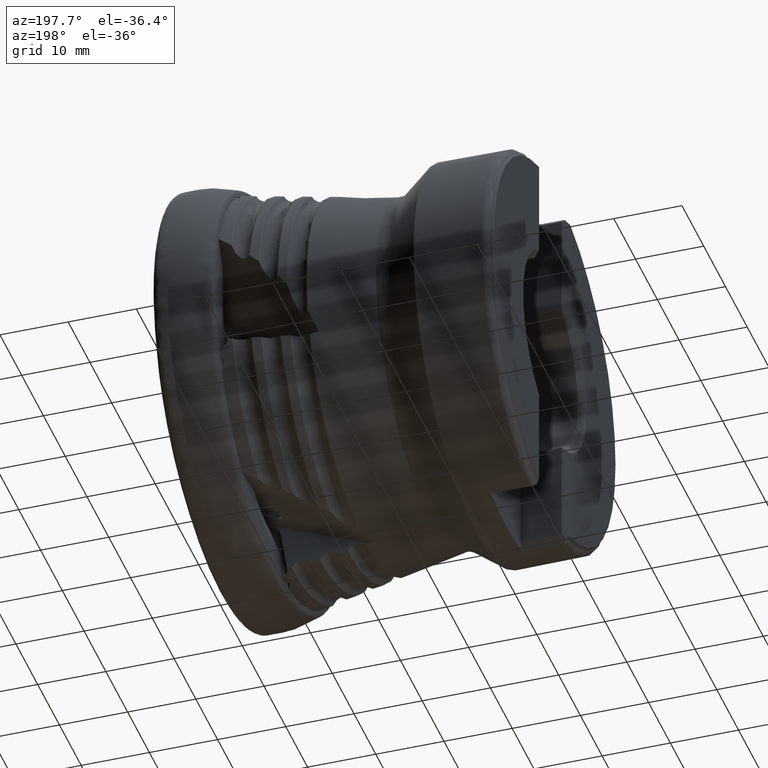
[diagram: clean part render]
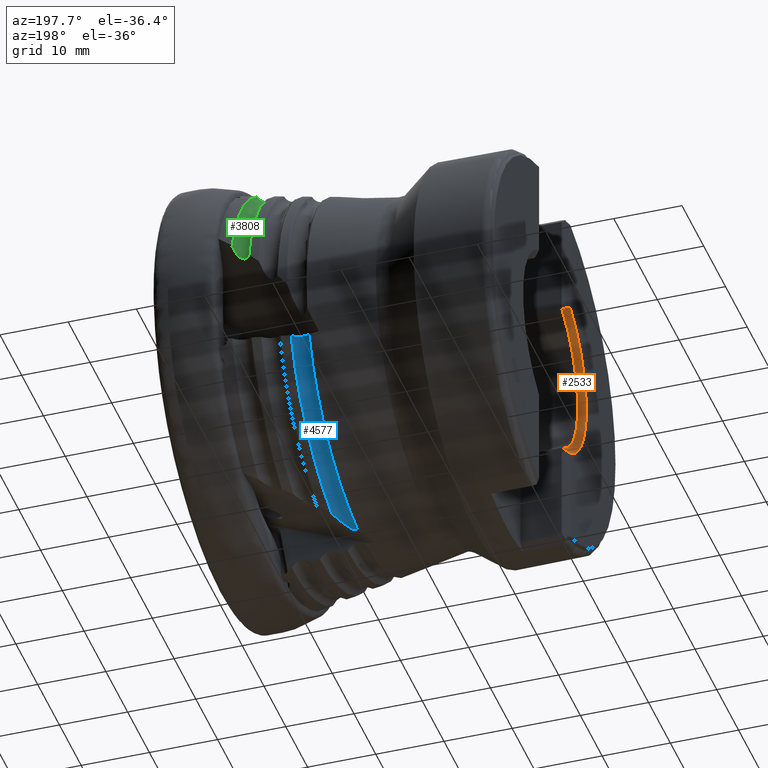
[diagram: same view with three faces highlighted in distinct colors, each labeled with its STEP entity id]
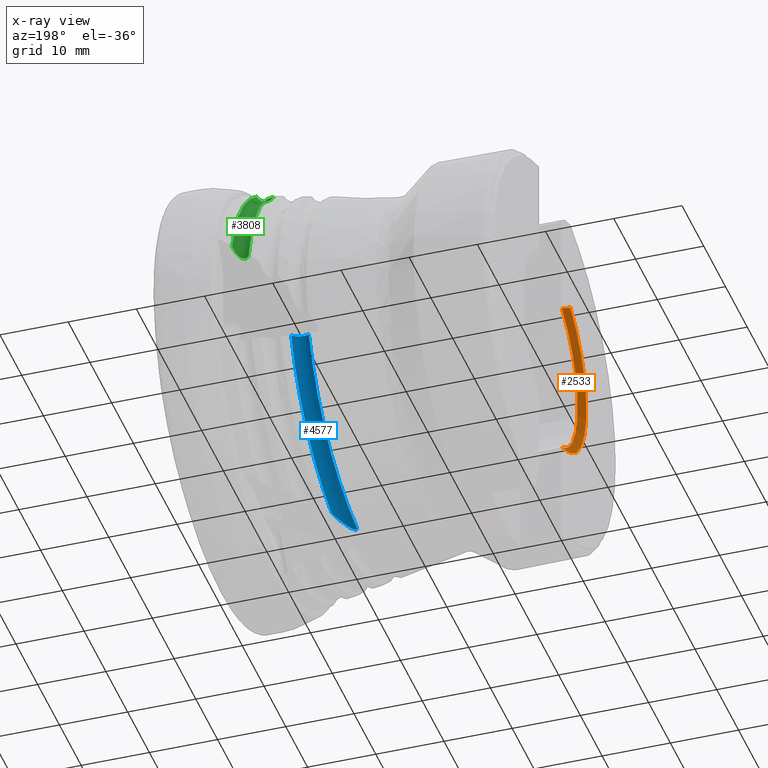
[diagram: x-ray of the same camera — body ghosted, the three highlighted faces saturated]
A machine part, auxiliary view with three faces highlighted in distinct colors.
The next image is the same camera in x-ray (body ghosted, the three faces saturated) — at least one of them is partly hidden behind the body in this view.
Their STEP definitions:

[orange] entity #2533 — the highlighted conical surface has half-angle 45 deg.
#253 = EDGE_CURVE ( 'NONE', #3003, #9557, #7418, .T. ) ;
#348 = CARTESIAN_POINT ( 'NONE',  ( -48.04999999999999700, -6.200000000000005500, -12.07644918839970000 ) ) ;
#521 = CARTESIAN_POINT ( 'NONE',  ( -48.04999999999999700, -6.200000000000005500, 12.07644918839969800 ) ) ;
#647 = VERTEX_POINT ( 'NONE', #348 ) ;
#669 = ORIENTED_EDGE ( 'NONE', *, *, #253, .T. ) ;
#764 = CARTESIAN_POINT ( 'NONE',  ( -48.04999999999999700, 0.0000000000000000000, 0.0000000000000000000 ) ) ;
#1737 = DIRECTION ( 'NONE',  ( 1.000000000000000000, -0.0000000000000000000, -0.0000000000000000000 ) ) ;
#1946 = DIRECTION ( 'NONE',  ( 1.000000000000000000, -0.0000000000000000000, -0.0000000000000000000 ) ) ;
#2095 = ORIENTED_EDGE ( 'NONE', *, *, #3274, .F. ) ;
#2190 = CARTESIAN_POINT ( 'NONE',  ( -48.68225802017243400, -6.832258020172453400, -12.45796061979415900 ) ) ;
#2438 = ORIENTED_EDGE ( 'NONE', *, *, #7546, .T. ) ;
#2533 = ADVANCED_FACE ( 'NONE', ( #10362 ), #3846, .F. ) ;
#3003 = VERTEX_POINT ( 'NONE', #3192 ) ;
#3192 = CARTESIAN_POINT ( 'NONE',  ( -48.99999999999999300, -7.150000000000027000, 12.64330356354697700 ) ) ;
#3274 = EDGE_CURVE ( 'NONE', #3003, #7185, #3711, .T. ) ;
#3711 = CIRCLE ( 'NONE', #6945, 14.52500000000000400 ) ;
#3846 = CONICAL_SURFACE ( 'NONE', #7898, 13.57499999999999400, 0.7853981633974533900 ) ;
#4205 = CARTESIAN_POINT ( 'NONE',  ( -48.68225802017243400, -6.832258020172455200, 12.45796061979416100 ) ) ;
#4342 = AXIS2_PLACEMENT_3D ( 'NONE', #6852, #1946, #7675 ) ;
#4865 = DIRECTION ( 'NONE',  ( -1.000000000000000000, 0.0000000000000000000, 0.0000000000000000000 ) ) ;
#5022 = CARTESIAN_POINT ( 'NONE',  ( -48.36554865071916300, -6.515548650719180700, 12.26915246257811100 ) ) ;
#5398 = CIRCLE ( 'NONE', #4342, 13.57499999999999400 ) ;
#5415 = CARTESIAN_POINT ( 'NONE',  ( -48.04999999999999700, -6.200000000000005500, -12.07644918839970000 ) ) ;
#5843 = CARTESIAN_POINT ( 'NONE',  ( -48.99999999999999300, -7.150000000000027000, 12.64330356354697700 ) ) ;
#6056 = B_SPLINE_CURVE_WITH_KNOTS ( 'NONE', 3,
 ( #5415, #10310, #2190, #7916 ),
 .UNSPECIFIED., .F., .F.,
 ( 4, 4 ),
 ( 3.080756841376747800E-007, 0.001458499937099714900 ),
 .UNSPECIFIED. ) ;
#6326 = CARTESIAN_POINT ( 'NONE',  ( -48.99999999999999300, -7.150000000000026100, -12.64330356354697700 ) ) ;
#6620 = CARTESIAN_POINT ( 'NONE',  ( -48.99999999999999300, 0.0000000000000000000, 0.0000000000000000000 ) ) ;
#6671 = CARTESIAN_POINT ( 'NONE',  ( -48.04999999999999700, -6.200000000000005500, 12.07644918839969800 ) ) ;
#6852 = CARTESIAN_POINT ( 'NONE',  ( -48.04999999999999700, 0.0000000000000000000, 0.0000000000000000000 ) ) ;
#6945 = AXIS2_PLACEMENT_3D ( 'NONE', #6620, #1737, #7450 ) ;
#7185 = VERTEX_POINT ( 'NONE', #6326 ) ;
#7270 = DIRECTION ( 'NONE',  ( 0.0000000000000000000, 0.0000000000000000000, 1.000000000000000000 ) ) ;
#7398 = ORIENTED_EDGE ( 'NONE', *, *, #8981, .T. ) ;
#7418 = B_SPLINE_CURVE_WITH_KNOTS ( 'NONE', 3,
 ( #5843, #4205, #5022, #6671 ),
 .UNSPECIFIED., .F., .F.,
 ( 4, 4 ),
 ( 7.678002105158184400E-005, 0.001534971882467160100 ),
 .UNSPECIFIED. ) ;
#7450 = DIRECTION ( 'NONE',  ( 0.0000000000000000000, 0.0000000000000000000, 1.000000000000000000 ) ) ;
#7546 = EDGE_CURVE ( 'NONE', #9557, #647, #5398, .T. ) ;
#7675 = DIRECTION ( 'NONE',  ( 0.0000000000000000000, 0.0000000000000000000, -1.000000000000000000 ) ) ;
#7898 = AXIS2_PLACEMENT_3D ( 'NONE', #764, #4865, #7270 ) ;
#7916 = CARTESIAN_POINT ( 'NONE',  ( -48.99999999999999300, -7.150000000000026100, -12.64330356354697700 ) ) ;
#8981 = EDGE_CURVE ( 'NONE', #647, #7185, #6056, .T. ) ;
#9557 = VERTEX_POINT ( 'NONE', #521 ) ;
#10310 = CARTESIAN_POINT ( 'NONE',  ( -48.36554865071916300, -6.515548650719178900, -12.26915246257811100 ) ) ;
#10362 = FACE_OUTER_BOUND ( 'NONE', #10581, .T. ) ;
#10581 = EDGE_LOOP ( 'NONE', ( #2095, #669, #2438, #7398 ) ) ;

[blue] entity #4577 — the highlighted toroidal blend (fillet) surface has major radius 28.0761 mm and minor (blend) radius 1.5 mm.
#69 = CARTESIAN_POINT ( 'NONE',  ( -20.59475425649207000, 2.848773286138754000, -26.52457006056786100 ) ) ;
#73 = AXIS2_PLACEMENT_3D ( 'NONE', #6305, #1417, #7132 ) ;
#314 = B_SPLINE_CURVE_WITH_KNOTS ( 'NONE', 3,
 ( #6372, #7200, #2303, #8016, #3138, #8840, #3951, #9670, #4764, #10482, #5592, #5859, #9836, #4928, #69, #5755, #888, #6579, #1683, #7406, #2505, #8210 ),
 .UNSPECIFIED., .F., .F.,
 ( 4, 2, 2, 2, 2, 2, 2, 2, 2, 2, 4 ),
 ( 0.004363889728994372800, 0.005841938041115829100, 0.007319986353237286300, 0.008059010509298013600, 0.008798034665358740000, 0.009167546743389105900, 0.009352302782404283600, 0.009537058821419459500, 0.009721814860434635500, 0.009906570899449813200, 0.01027608297748016700 ),
 .UNSPECIFIED. ) ;
#693 = CARTESIAN_POINT ( 'NONE',  ( -18.76767273611533000, 25.85669389570567500, -8.632357325337775200 ) ) ;
#888 = CARTESIAN_POINT ( 'NONE',  ( -20.76176280636673600, 2.887905306411341600, -26.59829288823949500 ) ) ;
#1024 = VERTEX_POINT ( 'NONE', #9533 ) ;
#1417 = DIRECTION ( 'NONE',  ( -1.000000000000000000, 0.0000000000000000000, 0.0000000000000000000 ) ) ;
#1441 = CARTESIAN_POINT ( 'NONE',  ( -20.72254879513125700, 25.30912798937951500, -8.598175423961304600 ) ) ;
#1651 = EDGE_CURVE ( 'NONE', #3023, #1024, #314, .T. ) ;
#1683 = CARTESIAN_POINT ( 'NONE',  ( -20.89656963842558600, 2.992642978543287300, -26.66962121147809800 ) ) ;
#2216 = CARTESIAN_POINT ( 'NONE',  ( -21.11411155307480700, 25.57529887100529500, -8.713449394845804700 ) ) ;
#2260 = CARTESIAN_POINT ( 'NONE',  ( -20.37667691220653400, 25.20017303061966300, -8.537343442895226200 ) ) ;
#2303 = CARTESIAN_POINT ( 'NONE',  ( -18.84767748017524600, 6.417658044851284800, -26.39619432086881200 ) ) ;
#2505 = CARTESIAN_POINT ( 'NONE',  ( -21.06444312964458000, 3.227282171688660800, -26.77528482770467400 ) ) ;
#3023 = VERTEX_POINT ( 'NONE', #8920 ) ;
#3094 = CARTESIAN_POINT ( 'NONE',  ( -20.01073914942264400, 25.17467846562749000, -8.502154035752147000 ) ) ;
#3138 = CARTESIAN_POINT ( 'NONE',  ( -19.24545308092432800, 5.002889860231096700, -26.32811401247114700 ) ) ;
#3700 = VERTEX_POINT ( 'NONE', #5406 ) ;
#3733 = CARTESIAN_POINT ( 'NONE',  ( -21.11411155307488100, 0.0000000000000000000, 0.0000000000000000000 ) ) ;
#3825 = TOROIDAL_SURFACE ( 'NONE', #8870, 28.07608189480843900, 1.500000000000000900 ) ;
#3913 = CARTESIAN_POINT ( 'NONE',  ( -19.64864265245425700, 25.23409605351732000, -8.494836690140246600 ) ) ;
#3951 = CARTESIAN_POINT ( 'NONE',  ( -19.60372368018670000, 4.089059646598151700, -26.32503654520430600 ) ) ;
#4175 = EDGE_CURVE ( 'NONE', #1024, #5695, #9442, .T. ) ;
#4259 = B_SPLINE_CURVE_WITH_KNOTS ( 'NONE', 3,
 ( #2216, #4685, #6337, #1441, #7161, #2260, #7974, #3094, #8796, #3913, #9623, #4718, #10440, #5546, #693, #6364 ),
 .UNSPECIFIED., .F., .F.,
 ( 4, 2, 2, 2, 2, 2, 2, 4 ),
 ( 2.799780502812145800E-007, 0.0003657046457612911800, 0.0007311293134723011400, 0.001096553981183310900, 0.001461978648894320900, 0.001827403316605330700, 0.002192827984316340700, 0.002923677319738354200 ),
 .UNSPECIFIED. ) ;
#4341 = EDGE_CURVE ( 'NONE', #5695, #3700, #4259, .T. ) ;
#4547 = DIRECTION ( 'NONE',  ( 0.0000000000000000000, 0.0000000000000000000, -1.000000000000000000 ) ) ;
#4577 = ADVANCED_FACE ( 'NONE', ( #8152 ), #3825, .F. ) ;
#4685 = CARTESIAN_POINT ( 'NONE',  ( -21.02709199606759000, 25.49395127790861800, -8.680619811764612900 ) ) ;
#4718 = CARTESIAN_POINT ( 'NONE',  ( -19.31067672205241700, 25.37449343059916600, -8.515605482622090600 ) ) ;
#4764 = CARTESIAN_POINT ( 'NONE',  ( -19.93489022287101900, 3.429233458935833800, -26.35206485765760900 ) ) ;
#4897 = EDGE_LOOP ( 'NONE', ( #9978, #9252, #5095, #9337 ) ) ;
#4928 = CARTESIAN_POINT ( 'NONE',  ( -20.53612586522950100, 2.857380519466875300, -26.50230026635910000 ) ) ;
#5095 = ORIENTED_EDGE ( 'NONE', *, *, #10205, .T. ) ;
#5110 = DIRECTION ( 'NONE',  ( 0.0000000000000000000, 0.0000000000000000000, -1.000000000000000000 ) ) ;
#5406 = CARTESIAN_POINT ( 'NONE',  ( -18.67063467501734700, 26.07484201119178700, -8.696103182379458100 ) ) ;
#5546 = CARTESIAN_POINT ( 'NONE',  ( -18.92017972269800600, 25.66329335024686400, -8.580730816233364400 ) ) ;
#5592 = CARTESIAN_POINT ( 'NONE',  ( -20.23238817483130300, 3.042110995895346700, -26.40957136230209200 ) ) ;
#5678 = CIRCLE ( 'NONE', #73, 27.48671672767055100 ) ;
#5695 = VERTEX_POINT ( 'NONE', #5701 ) ;
#5701 = CARTESIAN_POINT ( 'NONE',  ( -21.11411155307480700, 25.57529887100529500, -8.713449394845804700 ) ) ;
#5755 = CARTESIAN_POINT ( 'NONE',  ( -20.70878419645114800, 2.864416208523091500, -26.57311677260744200 ) ) ;
#5859 = CARTESIAN_POINT ( 'NONE',  ( -20.37451394333735900, 2.930846329962162800, -26.44894987518697600 ) ) ;
#6305 = CARTESIAN_POINT ( 'NONE',  ( -18.67063467501741100, 0.0000000000000000000, 0.0000000000000000000 ) ) ;
#6337 = CARTESIAN_POINT ( 'NONE',  ( -20.93124984555869300, 25.42461875075343200, -8.651045475532335200 ) ) ;
#6364 = CARTESIAN_POINT ( 'NONE',  ( -18.67063467501734700, 26.07484201119178700, -8.696103182379458100 ) ) ;
#6372 = CARTESIAN_POINT ( 'NONE',  ( -18.67063467501743900, 7.373635013249603400, -26.47922021432248100 ) ) ;
#6579 = CARTESIAN_POINT ( 'NONE',  ( -20.85524462065414000, 2.952028004855762300, -26.64638078324865600 ) ) ;
#7132 = DIRECTION ( 'NONE',  ( 0.0000000000000000000, 0.0000000000000000000, 1.000000000000000000 ) ) ;
#7161 = CARTESIAN_POINT ( 'NONE',  ( -20.60901915251693900, 25.26324181179270300, -8.574918788554930100 ) ) ;
#7200 = CARTESIAN_POINT ( 'NONE',  ( -18.74520262864539800, 6.893574000106341700, -26.43174118557020000 ) ) ;
#7406 = CARTESIAN_POINT ( 'NONE',  ( -21.00718182184286300, 3.125161535680341300, -26.73567438836772700 ) ) ;
#7974 = CARTESIAN_POINT ( 'NONE',  ( -20.25488300126810900, 25.18204965958234000, -8.522499856515167900 ) ) ;
#7980 = AXIS2_PLACEMENT_3D ( 'NONE', #3733, #9434, #4547 ) ;
#8016 = CARTESIAN_POINT ( 'NONE',  ( -19.09798428144694800, 5.472563099459641500, -26.34449394498888700 ) ) ;
#8152 = FACE_OUTER_BOUND ( 'NONE', #4897, .T. ) ;
#8210 = CARTESIAN_POINT ( 'NONE',  ( -21.11411155307470000, 3.333376453754708400, -26.81247310703232100 ) ) ;
#8347 = DIRECTION ( 'NONE',  ( 1.000000000000000000, -0.0000000000000000000, -0.0000000000000000000 ) ) ;
#8796 = CARTESIAN_POINT ( 'NONE',  ( -19.88948838814230100, 25.18504169680605300, -8.496606242807310100 ) ) ;
#8840 = CARTESIAN_POINT ( 'NONE',  ( -19.50862394189422800, 4.315981467417459200, -26.32332517355360600 ) ) ;
#8870 = AXIS2_PLACEMENT_3D ( 'NONE', #9998, #8347, #5110 ) ;
#8920 = CARTESIAN_POINT ( 'NONE',  ( -18.67063467501743900, 7.373635013249603400, -26.47922021432248100 ) ) ;
#9252 = ORIENTED_EDGE ( 'NONE', *, *, #4341, .T. ) ;
#9337 = ORIENTED_EDGE ( 'NONE', *, *, #1651, .T. ) ;
#9434 = DIRECTION ( 'NONE',  ( 1.000000000000000000, -0.0000000000000000000, -0.0000000000000000000 ) ) ;
#9442 = CIRCLE ( 'NONE', #7980, 27.01888437182001100 ) ;
#9533 = CARTESIAN_POINT ( 'NONE',  ( -21.11411155307470000, 3.333376453754708400, -26.81247310703232100 ) ) ;
#9623 = CARTESIAN_POINT ( 'NONE',  ( -19.53150968127171100, 25.27257662623328100, -8.498727537435700100 ) ) ;
#9670 = CARTESIAN_POINT ( 'NONE',  ( -19.81740557304601000, 3.646856448242514300, -26.33981703577189400 ) ) ;
#9836 = CARTESIAN_POINT ( 'NONE',  ( -20.42630618106522200, 2.898687612352652400, -26.46465515631749800 ) ) ;
#9978 = ORIENTED_EDGE ( 'NONE', *, *, #4175, .T. ) ;
#9998 = CARTESIAN_POINT ( 'NONE',  ( -20.04999999999999700, 0.0000000000000000000, 0.0000000000000000000 ) ) ;
#10205 = EDGE_CURVE ( 'NONE', #3700, #3023, #5678, .T. ) ;
#10440 = CARTESIAN_POINT ( 'NONE',  ( -19.20482454095466800, 25.43924543992520500, -8.528861861737553300 ) ) ;
#10482 = CARTESIAN_POINT ( 'NONE',  ( -20.15188139223895500, 3.136241734900619500, -26.39229173988335100 ) ) ;

[green] entity #3808 — the highlighted toroidal blend (fillet) surface has major radius 29.6078 mm and minor (blend) radius 1.5 mm.
#85 = B_SPLINE_CURVE_WITH_KNOTS ( 'NONE', 3,
 ( #5454, #1360, #6280, #1387, #7104, #2193, #7918, #3037, #8731, #3852, #9559, #4666, #10385, #5488 ),
 .UNSPECIFIED., .F., .F.,
 ( 4, 2, 2, 2, 2, 2, 4 ),
 ( 8.155304949710935600E-007, 0.0009638558433296592600, 0.001926896156164347300, 0.002408416312581690600, 0.002889936468999033700, 0.003371456625416377200, 0.003852976781833720300 ),
 .UNSPECIFIED. ) ;
#265 = ORIENTED_EDGE ( 'NONE', *, *, #6290, .T. ) ;
#403 = FACE_OUTER_BOUND ( 'NONE', #5796, .T. ) ;
#632 = CARTESIAN_POINT ( 'NONE',  ( -10.67063467501733400, 28.13274093677381800, 7.114565897915605700 ) ) ;
#653 = DIRECTION ( 'NONE',  ( 0.0000000000000000000, 0.0000000000000000000, 1.000000000000000000 ) ) ;
#711 = CARTESIAN_POINT ( 'NONE',  ( -13.02716174802381000, 16.58281681838148500, 23.13343920563130500 ) ) ;
#742 = CARTESIAN_POINT ( 'NONE',  ( -11.53208195439192500, 16.34003193784625600, 22.97713904260040300 ) ) ;
#1041 = CARTESIAN_POINT ( 'NONE',  ( -13.11411155307485600, 28.11753992861569200, 4.953733249772706200 ) ) ;
#1360 = CARTESIAN_POINT ( 'NONE',  ( -10.74938793200680600, 28.01699864832456300, 6.820463119243361100 ) ) ;
#1377 = VERTEX_POINT ( 'NONE', #2436 ) ;
#1387 = CARTESIAN_POINT ( 'NONE',  ( -11.14297658484087000, 27.76133967043718800, 5.979263335229236800 ) ) ;
#1500 = CARTESIAN_POINT ( 'NONE',  ( -13.11411155307481400, 16.63920075579878200, 23.20070091517547400 ) ) ;
#1534 = CARTESIAN_POINT ( 'NONE',  ( -11.20520647778393600, 16.41988047788980500, 23.12592839298283200 ) ) ;
#1649 = VERTEX_POINT ( 'NONE', #5554 ) ;
#1771 = VERTEX_POINT ( 'NONE', #1041 ) ;
#2110 = CARTESIAN_POINT ( 'NONE',  ( -13.11411155307473600, 0.0000000000000000000, 0.0000000000000000000 ) ) ;
#2193 = CARTESIAN_POINT ( 'NONE',  ( -11.63274054460837300, 27.65208939937789300, 5.339315896356293200 ) ) ;
#2288 = TOROIDAL_SURFACE ( 'NONE', #5988, 29.60777588398130800, 1.500000000000002400 ) ;
#2342 = CARTESIAN_POINT ( 'NONE',  ( -10.76770826558228900, 16.64704370235161300, 23.49063942215678200 ) ) ;
#2436 = CARTESIAN_POINT ( 'NONE',  ( -13.11411155307481400, 16.63920075579878200, 23.20070091517547400 ) ) ;
#2864 = CIRCLE ( 'NONE', #8804, 29.01841071684316000 ) ;
#2954 = DIRECTION ( 'NONE',  ( 0.0000000000000000000, 0.0000000000000000000, -1.000000000000000000 ) ) ;
#3037 = CARTESIAN_POINT ( 'NONE',  ( -11.99977303547648000, 27.65175516106739600, 5.018535087565088500 ) ) ;
#3153 = CARTESIAN_POINT ( 'NONE',  ( -12.72288670336652500, 16.44712445962994700, 22.98287326328280100 ) ) ;
#3228 = DIRECTION ( 'NONE',  ( 0.0000000000000000000, 0.0000000000000000000, -1.000000000000000000 ) ) ;
#3805 = ORIENTED_EDGE ( 'NONE', *, *, #8547, .T. ) ;
#3808 = ADVANCED_FACE ( 'NONE', ( #403 ), #2288, .F. ) ;
#3852 = CARTESIAN_POINT ( 'NONE',  ( -12.43171153141064300, 27.73628755042297900, 4.806424098651162600 ) ) ;
#3962 = CARTESIAN_POINT ( 'NONE',  ( -12.37724593011005700, 16.35529912610593700, 22.89760624137625600 ) ) ;
#4308 = ORIENTED_EDGE ( 'NONE', *, *, #10095, .T. ) ;
#4666 = CARTESIAN_POINT ( 'NONE',  ( -12.87990619296898800, 27.93715943348112400, 4.806710685959798100 ) ) ;
#4776 = CARTESIAN_POINT ( 'NONE',  ( -12.01141480679767600, 16.31356393521093700, 22.88368436344093500 ) ) ;
#5454 = CARTESIAN_POINT ( 'NONE',  ( -10.67063467501733400, 28.13274093677381800, 7.114565897915605700 ) ) ;
#5488 = CARTESIAN_POINT ( 'NONE',  ( -13.11411155307485600, 28.11753992861569200, 4.953733249772706200 ) ) ;
#5513 = DIRECTION ( 'NONE',  ( -1.000000000000000000, 0.0000000000000000000, 0.0000000000000000000 ) ) ;
#5554 = CARTESIAN_POINT ( 'NONE',  ( -10.67063467501734500, 16.77505493116700900, 23.67838027796118500 ) ) ;
#5604 = CARTESIAN_POINT ( 'NONE',  ( -11.64932575828272300, 16.32456016651784500, 22.94189587975616700 ) ) ;
#5648 = DIRECTION ( 'NONE',  ( 1.000000000000000000, -0.0000000000000000000, -0.0000000000000000000 ) ) ;
#5796 = EDGE_LOOP ( 'NONE', ( #4308, #3805, #7241, #265 ) ) ;
#5988 = AXIS2_PLACEMENT_3D ( 'NONE', #8112, #5648, #3228 ) ;
#6050 = CIRCLE ( 'NONE', #7376, 28.55057836099302900 ) ;
#6280 = CARTESIAN_POINT ( 'NONE',  ( -10.86011351534434000, 27.91986475743186700, 6.534714407699403300 ) ) ;
#6290 = EDGE_CURVE ( 'NONE', #6316, #1771, #85, .T. ) ;
#6316 = VERTEX_POINT ( 'NONE', #632 ) ;
#6415 = CARTESIAN_POINT ( 'NONE',  ( -11.31113686646825700, 16.38735781048027800, 23.06856260356598300 ) ) ;
#6828 = B_SPLINE_CURVE_WITH_KNOTS ( 'NONE', 3,
 ( #1500, #711, #8029, #3153, #8855, #3962, #9684, #4776, #10498, #5604, #742, #6415, #1534, #7252, #2342, #8060 ),
 .UNSPECIFIED., .F., .F.,
 ( 4, 2, 2, 2, 2, 2, 2, 4 ),
 ( 2.801674713960464400E-007, 0.0003656589492641894300, 0.0007310377310569828800, 0.001096416512849776100, 0.001461795294642569600, 0.001827174076435362800, 0.002192552858228156500, 0.002923310421813752500 ),
 .UNSPECIFIED. ) ;
#7104 = CARTESIAN_POINT ( 'NONE',  ( -11.31698691740326100, 27.69921112424536600, 5.706491434214997900 ) ) ;
#7241 = ORIENTED_EDGE ( 'NONE', *, *, #9455, .T. ) ;
#7252 = CARTESIAN_POINT ( 'NONE',  ( -10.92031540967045600, 16.53824397438052100, 23.32273429083041100 ) ) ;
#7376 = AXIS2_PLACEMENT_3D ( 'NONE', #2110, #7832, #2954 ) ;
#7832 = DIRECTION ( 'NONE',  ( 1.000000000000000000, -0.0000000000000000000, -0.0000000000000000000 ) ) ;
#7918 = CARTESIAN_POINT ( 'NONE',  ( -11.74858660698883600, 27.64409307140491700, 5.222700450724554200 ) ) ;
#8029 = CARTESIAN_POINT ( 'NONE',  ( -12.93140159827209200, 16.53322125276675100, 23.07656902504372100 ) ) ;
#8060 = CARTESIAN_POINT ( 'NONE',  ( -10.67063467501734500, 16.77505493116700900, 23.67838027796118500 ) ) ;
#8112 = CARTESIAN_POINT ( 'NONE',  ( -12.05000000000000100, 0.0000000000000000000, 0.0000000000000000000 ) ) ;
#8547 = EDGE_CURVE ( 'NONE', #1377, #1649, #6828, .T. ) ;
#8731 = CARTESIAN_POINT ( 'NONE',  ( -12.13852241585503400, 27.66761208406332200, 4.928398387566746300 ) ) ;
#8804 = AXIS2_PLACEMENT_3D ( 'NONE', #10404, #5513, #653 ) ;
#8855 = CARTESIAN_POINT ( 'NONE',  ( -12.60944162164107300, 16.41073557740270100, 22.94628443913565300 ) ) ;
#9455 = EDGE_CURVE ( 'NONE', #1649, #6316, #2864, .T. ) ;
#9559 = CARTESIAN_POINT ( 'NONE',  ( -12.58935700394049200, 27.79122458617602500, 4.775916288606556900 ) ) ;
#9684 = CARTESIAN_POINT ( 'NONE',  ( -12.25553876233179900, 16.33545990648528300, 22.88477898590254600 ) ) ;
#10095 = EDGE_CURVE ( 'NONE', #1771, #1377, #6050, .T. ) ;
#10385 = CARTESIAN_POINT ( 'NONE',  ( -13.00924980164927400, 28.02574844769672100, 4.866426818472156400 ) ) ;
#10404 = CARTESIAN_POINT ( 'NONE',  ( -10.67063467501680100, 0.0000000000000000000, 0.0000000000000000000 ) ) ;
#10498 = CARTESIAN_POINT ( 'NONE',  ( -11.89016954947945400, 16.31135556029439100, 22.89506893194448600 ) ) ;